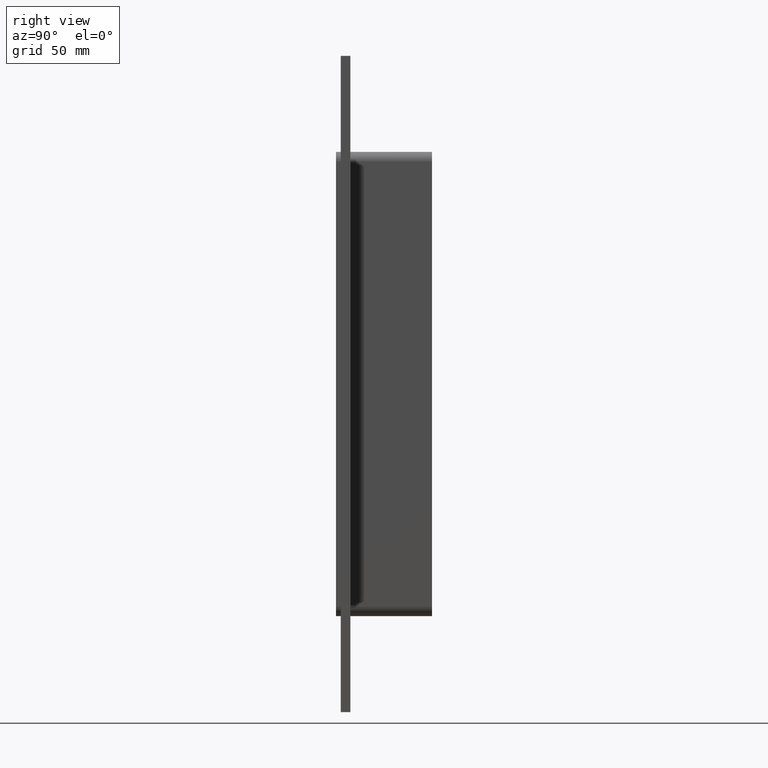
[diagram: clean part render]
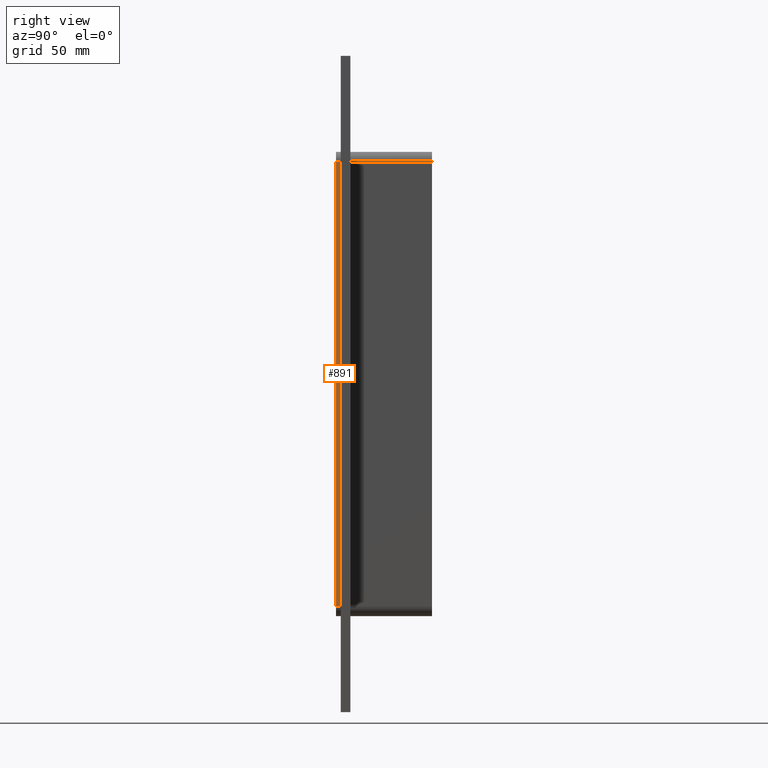
[diagram: same view with one face highlighted and labeled with its STEP entity id]
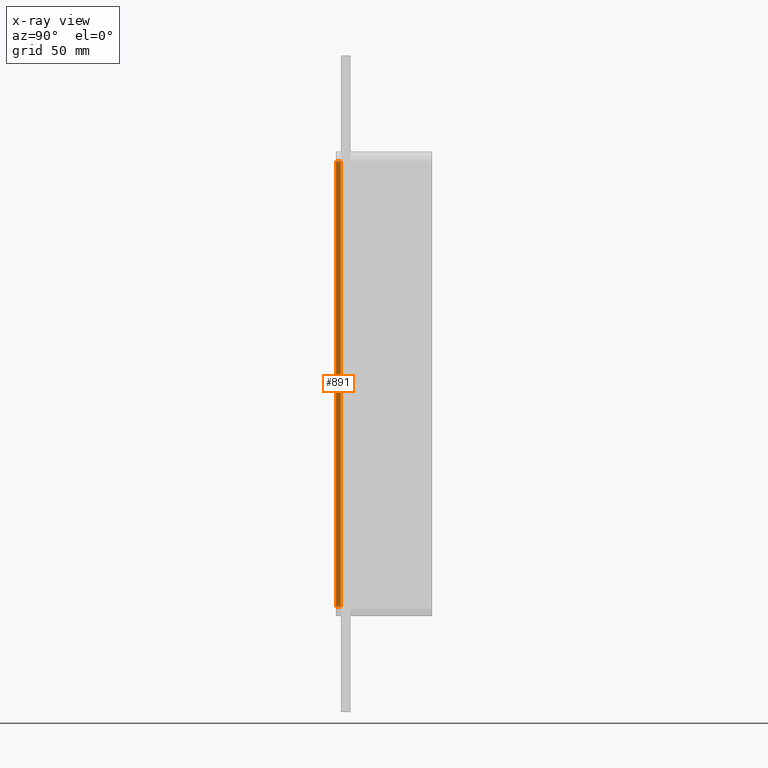
[diagram: x-ray of the same camera — body ghosted, the highlighted face saturated]
A machine part, right view. The second image highlights one B-rep face of the part: STEP entity #891.
The next image is the same camera in x-ray: the body ghosted, the highlighted face saturated — about 0% of this face is hidden behind the body in this view.
In plain terms, the highlighted planar face has unit normal (1, 0, 0).
Its self-contained STEP definition (entity closure, byte-faithful):
#661=CARTESIAN_POINT('',(36.250000000000007,0.0,139.0));
#662=VERTEX_POINT('',#661);
#670=CARTESIAN_POINT('',(36.250000000000007,0.0,-139.0));
#671=VERTEX_POINT('',#670);
#672=CARTESIAN_POINT('',(36.250000000000007,0.0,-139.0));
#673=DIRECTION('',(0.0,0.0,1.0));
#674=VECTOR('',#673,278.0);
#675=LINE('',#672,#674);
#676=EDGE_CURVE('',#671,#662,#675,.T.);
#818=CARTESIAN_POINT('',(36.250000000000007,-3.0,139.0));
#819=VERTEX_POINT('',#818);
#827=CARTESIAN_POINT('',(36.250000000000007,-3.0,139.0));
#828=DIRECTION('',(0.0,1.0,0.0));
#829=VECTOR('',#828,3.0);
#830=LINE('',#827,#829);
#831=EDGE_CURVE('',#819,#662,#830,.T.);
#868=CARTESIAN_POINT('',(36.250000000000007,0.0,145.0));
#869=DIRECTION('',(1.0,0.0,0.0));
#870=DIRECTION('',(0.0,0.0,-1.0));
#871=AXIS2_PLACEMENT_3D('',#868,#869,#870);
#872=PLANE('',#871);
#873=ORIENTED_EDGE('',*,*,#676,.T.);
#874=ORIENTED_EDGE('',*,*,#831,.F.);
#875=CARTESIAN_POINT('',(36.250000000000007,-3.0,-139.0));
#876=VERTEX_POINT('',#875);
#877=CARTESIAN_POINT('',(36.250000000000007,-3.0,-139.0));
#878=DIRECTION('',(0.0,0.0,1.0));
#879=VECTOR('',#878,278.0);
#880=LINE('',#877,#879);
#881=EDGE_CURVE('',#876,#819,#880,.T.);
#882=ORIENTED_EDGE('',*,*,#881,.F.);
#883=CARTESIAN_POINT('',(36.250000000000007,0.0,-139.0));
#884=DIRECTION('',(0.0,-1.0,0.0));
#885=VECTOR('',#884,3.0);
#886=LINE('',#883,#885);
#887=EDGE_CURVE('',#671,#876,#886,.T.);
#888=ORIENTED_EDGE('',*,*,#887,.F.);
#889=EDGE_LOOP('',(#873,#874,#882,#888));
#890=FACE_OUTER_BOUND('',#889,.T.);
#891=ADVANCED_FACE('',(#890),#872,.T.);